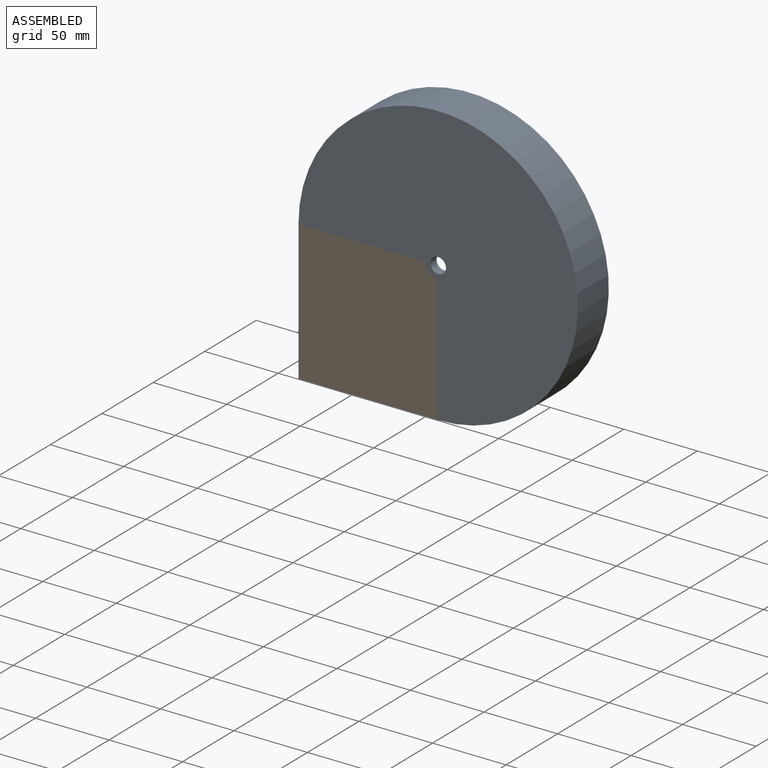
[diagram: assembled view]
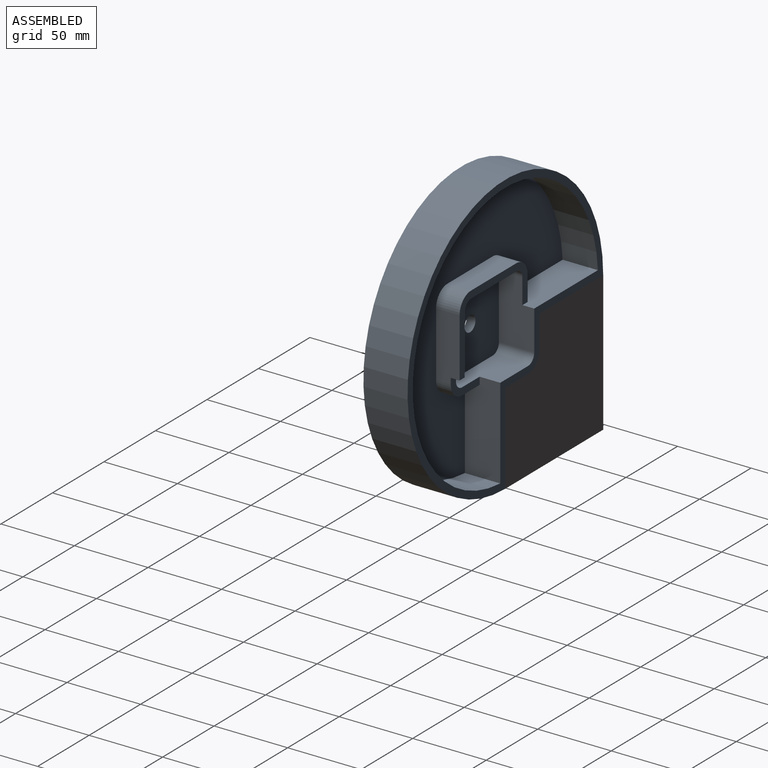
[diagram: assembled view, second angle]
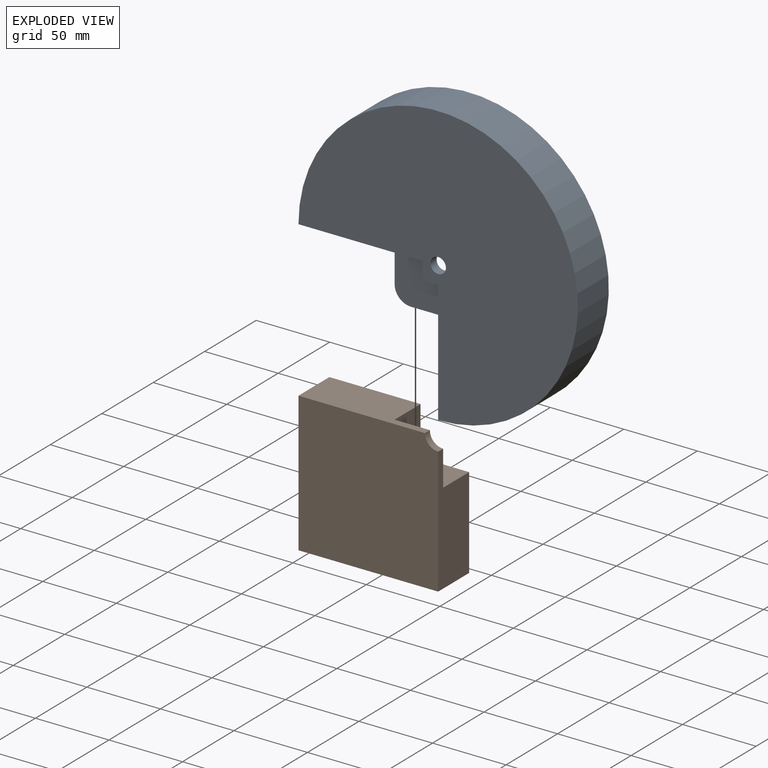
[diagram: exploded view]
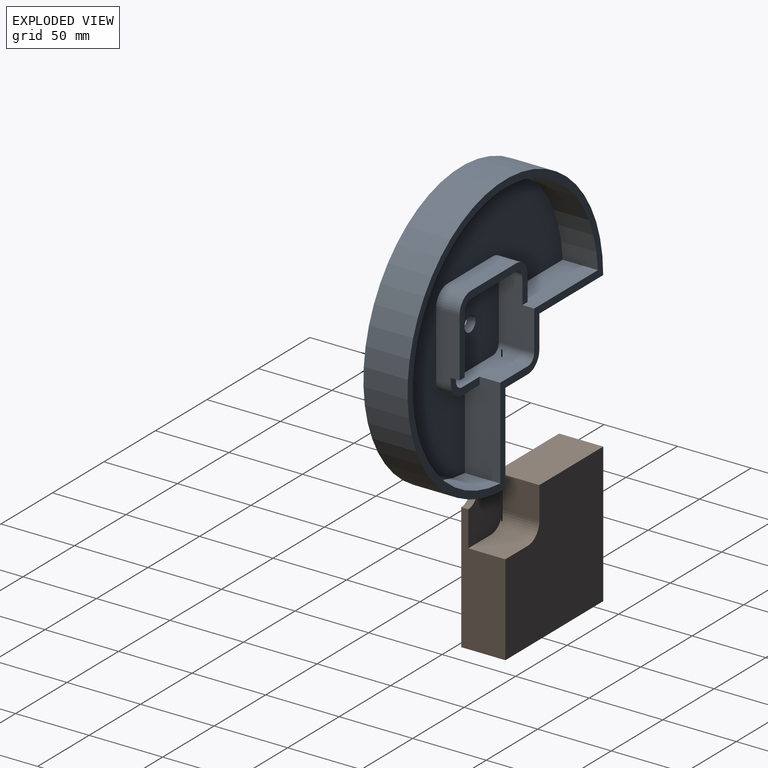
[diagram: exploded view, second angle]
ASSEMBLY  parts=2 mates=3
PART A: 34 faces, bbox 190x30x190 mm
  f0: plane 17x10mm, normal (0,0,-1), area 170mm2, adj f11,f19,f29,f33
  f1: cylinder r=6mm len=10mm, axis (0,-1,0), area 94.2mm2, adj f7,f17,f20,f29
  f2: plane 190x190mm, normal (0,1,0), area 3085.8mm2, adj f8,f9,f12,f14,f16,f18,f19,f20
  f3: plane 44x16mm, normal (0,0,-1), area 704mm2, adj f17,f24,f26,f27
  f4: plane 17x16mm, normal (-1,0,0), area 272mm2, adj f11,f18,f24,f31
  f5: plane 44x16mm, normal (0,0,1), area 704mm2, adj f11,f24,f31,f32
  f6: plane 44x16mm, normal (1,0,0), area 680mm2, adj f11,f24,f28,f29,f32,f33
  f7: plane 44x16mm, normal (-1,0,0), area 680mm2, adj f1,f17,f24,f26,f28,f29
  f8: plane 44x24mm, normal (1,0,0), area 920mm2, adj f2,f17,f18,f24,f25,f27
  f9: plane 86x30mm, normal (-1,0,0), area 1975.2mm2, adj f2,f10,f14,f15,f21,f23
  f10: cylinder r=9mm len=9mm, axis (0,-1,0), area 67.9mm2, adj f9,f15,f16,f23
  f11: plane 179.86x179.86mm, normal (0,1,0), area 15326.5mm2, adj f0,f4,f5,f6,f12,f18,f19,f31
  f12: cylinder r=90mm len=179.86mm, axis (0,1,0), area 9938.6mm2, adj f2,f11,f18,f19
  f13: cylinder r=5.25mm len=10.5mm, axis (0,-1,0), area 197.9mm2, adj f15,f17
  f14: cylinder r=95mm len=190mm, axis (0,1,0), area 13430.3mm2, adj f2,f9,f15,f16
  f15: plane 190x190mm, normal (0,-1,0), area 21241.7mm2, adj f9,f10,f13,f14,f16
  f16: plane 86x30mm, normal (0,0,-1), area 1975.2mm2, adj f2,f10,f14,f15,f22,f23
  f17: plane 56x56mm, normal (0,1,0), area 3018.5mm2, adj f1,f3,f7,f8,f13,f20,f25,f26
  f18: plane 61.86x24mm, normal (0,0,1), area 1404.7mm2, adj f2,f4,f8,f11,f12,f24
  f19: plane 61.86x24mm, normal (1,0,0), area 1434.7mm2, adj f0,f2,f11,f12,f20,f29
  f20: plane 44x24mm, normal (0,0,1), area 818mm2, adj f1,f2,f17,f19,f25,f29
  f21: plane 25.2x22mm, normal (0,0,-1), area 554.4mm2, adj f2,f9,f23,f30
  f22: plane 25.2x22mm, normal (-1,0,0), area 554.4mm2, adj f2,f16,f23,f30
  f23: plane 33x33mm, normal (0,-1,0), area 999.4mm2, adj f9,f10,f16,f21,f22,f30
  f24: plane 66x51mm, normal (0,1,0), area 638.5mm2, adj f3,f4,f5,f6,f7,f8,f18,f26
  f25: cylinder r=6mm len=24mm, axis (0,1,0), area 226.2mm2, adj f2,f8,f17,f20
  f26: cylinder r=6mm len=16mm, axis (0,1,0), area 150.8mm2, adj f3,f7,f17,f24
  f27: cylinder r=6mm len=16mm, axis (0,-1,0), area 150.8mm2, adj f3,f8,f17,f24
  f28: plane 6x5mm, normal (0,0,-1), area 30mm2, adj f6,f7,f24,f29
  f29: plane 28x15mm, normal (0,1,0), area 171.8mm2, adj f0,f1,f6,f7,f19,f20,f28,f33
  f30: cylinder r=11mm len=25.2mm, axis (0,-1,0), area 435.4mm2, adj f2,f21,f22,f23
  f31: cylinder r=11mm len=16mm, axis (0,1,0), area 276.5mm2, adj f4,f5,f11,f24
  f32: cylinder r=11mm len=16mm, axis (0,-1,0), area 276.5mm2, adj f5,f6,f11,f24
  f33: cylinder r=11mm len=11mm, axis (0,1,0), area 172.8mm2, adj f0,f6,f11,f29
PART B: 11 faces, bbox 95x30x95 mm
  f0: plane 86x30mm, normal (1,0,0), area 1975.2mm2, adj f1,f4,f5,f6,f7,f9
  f1: cylinder r=9mm len=9mm, axis (0,-1,0), area 67.9mm2, adj f0,f2,f5,f9
  f2: plane 86x30mm, normal (0,0,1), area 1975.2mm2, adj f1,f3,f5,f6,f8,f9
  f3: plane 95x30mm, normal (-1,0,0), area 2850mm2, adj f2,f4,f5,f6
  f4: plane 95x30mm, normal (0,0,-1), area 2850mm2, adj f0,f3,f5,f6
  f5: plane 95x95mm, normal (0,-1,0), area 8961.4mm2, adj f0,f1,f2,f3,f4
  f6: plane 95x95mm, normal (0,1,0), area 7962mm2, adj f0,f2,f3,f4,f7,f8,f10
  f7: plane 25.2x22mm, normal (0,0,1), area 554.4mm2, adj f0,f6,f9,f10
  f8: plane 25.2x22mm, normal (1,0,0), area 554.4mm2, adj f2,f6,f9,f10
  f9: plane 33x33mm, normal (0,1,0), area 999.4mm2, adj f0,f1,f2,f7,f8,f10
  f10: cylinder r=11mm len=25.2mm, axis (0,1,0), area 435.4mm2, adj f6,f7,f8,f9
PLACE A t=(-6.9,38.19,-23.46)mm
PLACE B t=(-54.4,38.19,-70.96)mm
MATE planar B.f2 <-> A.f16  axis (0,0,1) through (-58.9,8.19,-23.46)mm
MATE planar B.f5 <-> A.f15  axis (0,-1,0) through (-54.71,8.19,-71.27)mm
MATE planar A.f9 <-> B.f0  axis (-1,0,0) through (-6.9,22.46,-84.96)mm
